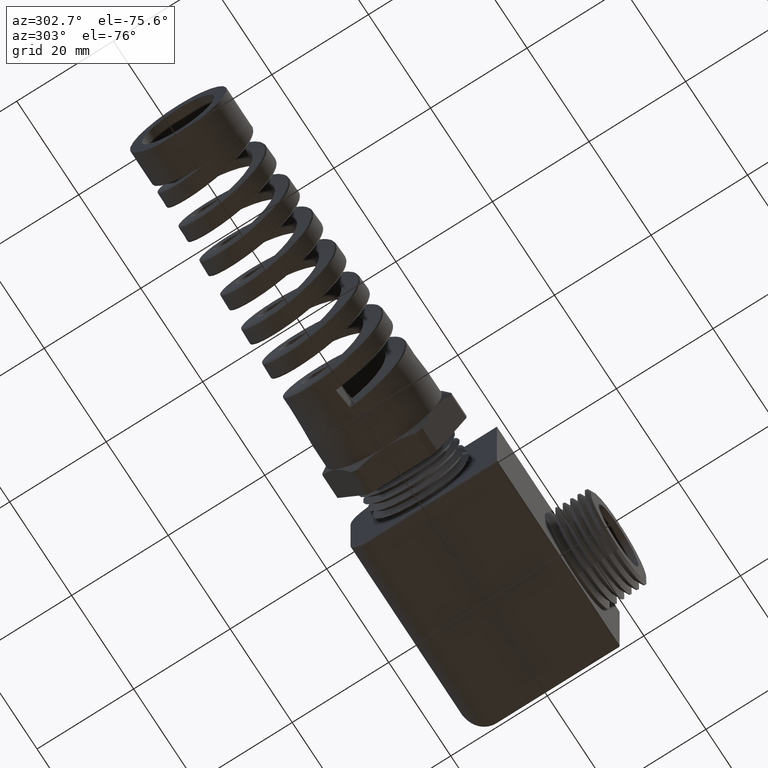
[diagram: clean part render]
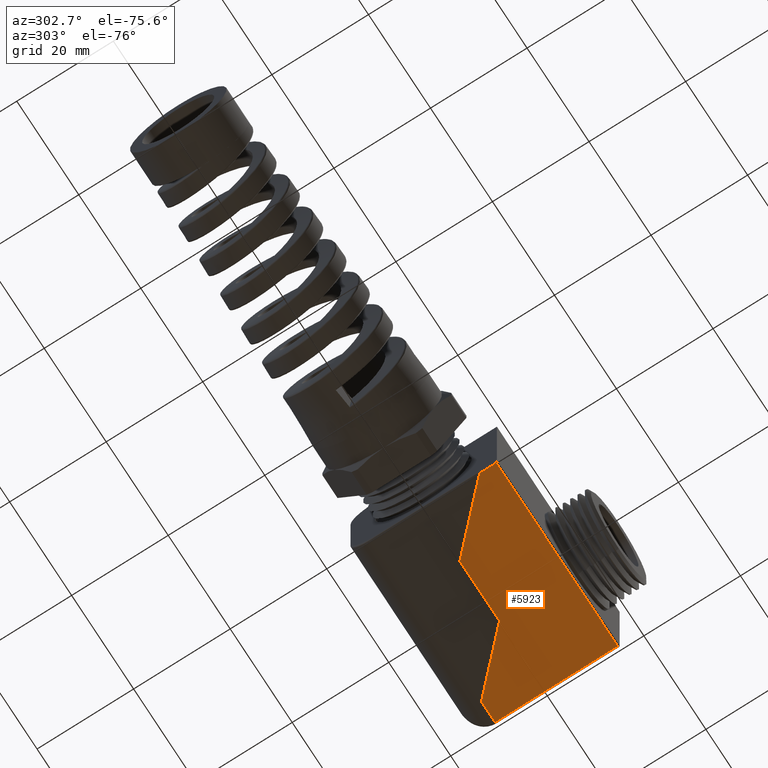
[diagram: same view with one face highlighted and labeled with its STEP entity id]
A machine part, auxiliary view. The second image highlights one B-rep face of the part: STEP entity #5923.
In plain terms, the highlighted planar face has unit normal (0, 0, 1).
Its self-contained STEP definition (entity closure, byte-faithful):
#3500 = CARTESIAN_POINT ( 'NONE',  ( 0.9679999999999955300, -6.137788176939980600E-018, -0.4699999999999999200 ) ) ;
#3527 = DIRECTION ( 'NONE',  ( -1.000000000000000000, -2.319516484482452500E-017, 0.0000000000000000000 ) ) ;
#3528 = VECTOR ( 'NONE', #3527, 39.37007874015748100 ) ;
#3529 = CARTESIAN_POINT ( 'NONE',  ( 1.232614984114216700, 0.0000000000000000000, -0.4699999999999999200 ) ) ;
#3530 = LINE ( 'NONE', #3529, #3528 ) ;
#3561 = DIRECTION ( 'NONE',  ( -0.7071067811865509000, -0.7071067811865441300, 0.0000000000000000000 ) ) ;
#3562 = VECTOR ( 'NONE', #3561, 39.37007874015748100 ) ;
#3573 = CARTESIAN_POINT ( 'NONE',  ( 0.9817780020556733400, 0.01377800205567775500, -0.4699999999999999200 ) ) ;
#3574 = LINE ( 'NONE', #3573, #3562 ) ;
#3596 = CARTESIAN_POINT ( 'NONE',  ( 0.01265536723163843500, -0.4513446327683522400, -0.4699999999999999200 ) ) ;
#3597 = DIRECTION ( 'NONE',  ( -0.7071067811865512400, -0.7071067811865438000, 0.0000000000000000000 ) ) ;
#3598 = VECTOR ( 'NONE', #3597, 39.37007874015748100 ) ;
#3600 = CARTESIAN_POINT ( 'NONE',  ( 0.7297780020556762200, 0.2657780020556779200, -0.4699999999999999200 ) ) ;
#3601 = LINE ( 'NONE', #3600, #3598 ) ;
#3602 = CARTESIAN_POINT ( 'NONE',  ( 0.4639999999999955300, 0.0000000000000000000, -0.4699999999999999200 ) ) ;
#3618 = LINE ( 'NONE', #3673, #3672 ) ;
#3619 = CARTESIAN_POINT ( 'NONE',  ( 1.381333333333332900, 0.4133333333333332200, -0.4699999999999999200 ) ) ;
#3641 = CARTESIAN_POINT ( 'NONE',  ( 0.01265536723163844200, -0.5873446327683619100, -0.4699999999999999200 ) ) ;
#3670 = DIRECTION ( 'NONE',  ( -6.418815774587142800E-017, 1.000000000000000000, 0.0000000000000000000 ) ) ;
#3672 = VECTOR ( 'NONE', #3670, 39.37007874015748100 ) ;
#3673 = CARTESIAN_POINT ( 'NONE',  ( 0.01265536723163842100, -0.2370589800028679000, -0.4699999999999999200 ) ) ;
#3707 = CARTESIAN_POINT ( 'NONE',  ( 1.555344632768362000, -0.5873446327683616900, -0.4699999999999999200 ) ) ;
#3715 = DIRECTION ( 'NONE',  ( 1.000000000000000000, 0.0000000000000000000, 0.0000000000000000000 ) ) ;
#3716 = DIRECTION ( 'NONE',  ( 0.0000000000000000000, 0.0000000000000000000, 1.000000000000000000 ) ) ;
#3717 = CARTESIAN_POINT ( 'NONE',  ( 1.232614984114216700, -0.2370589800028678500, -0.4699999999999999200 ) ) ;
#3718 = AXIS2_PLACEMENT_3D ( 'NONE', #3717, #3716, #3715 ) ;
#3719 = PLANE ( 'NONE',  #3718 ) ;
#3721 = FACE_OUTER_BOUND ( 'NONE', #5925, .T. ) ;
#3722 = DIRECTION ( 'NONE',  ( -1.000000000000000000, -1.306687496969513600E-016, 0.0000000000000000000 ) ) ;
#3723 = VECTOR ( 'NONE', #3722, 39.37007874015748100 ) ;
#3725 = CARTESIAN_POINT ( 'NONE',  ( 0.0000000000000000000, -0.5873446327683619100, -0.4699999999999999200 ) ) ;
#3726 = LINE ( 'NONE', #3725, #3723 ) ;
#3888 = DIRECTION ( 'NONE',  ( 2.276539994720219800E-016, -1.000000000000000000, 0.0000000000000000000 ) ) ;
#3890 = VECTOR ( 'NONE', #3888, 39.37007874015748100 ) ;
#3891 = CARTESIAN_POINT ( 'NONE',  ( 1.555344632768362000, -0.5999999999999999800, -0.4699999999999999200 ) ) ;
#3892 = LINE ( 'NONE', #3891, #3890 ) ;
#3902 = CARTESIAN_POINT ( 'NONE',  ( 1.555344632768361800, 0.4133333333333332200, -0.4699999999999999200 ) ) ;
#3903 = DIRECTION ( 'NONE',  ( 1.000000000000000000, 0.0000000000000000000, 0.0000000000000000000 ) ) ;
#3904 = VECTOR ( 'NONE', #3903, 39.37007874015748100 ) ;
#3905 = CARTESIAN_POINT ( 'NONE',  ( 1.232614984114216700, 0.4133333333333332200, -0.4699999999999999200 ) ) ;
#3906 = LINE ( 'NONE', #3905, #3904 ) ;
#5701 = ORIENTED_EDGE ( 'NONE', *, *, #5884, .F. ) ;
#5795 = ORIENTED_EDGE ( 'NONE', *, *, #5861, .F. ) ;
#5837 = VERTEX_POINT ( 'NONE', #3500 ) ;
#5861 = EDGE_CURVE ( 'NONE', #5837, #5882, #3530, .T. ) ;
#5873 = EDGE_CURVE ( 'NONE', #5899, #5837, #3574, .T. ) ;
#5882 = VERTEX_POINT ( 'NONE', #3602 ) ;
#5884 = EDGE_CURVE ( 'NONE', #5882, #5885, #3601, .T. ) ;
#5885 = VERTEX_POINT ( 'NONE', #3596 ) ;
#5899 = VERTEX_POINT ( 'NONE', #3619 ) ;
#5904 = ORIENTED_EDGE ( 'NONE', *, *, #5918, .T. ) ;
#5905 = ORIENTED_EDGE ( 'NONE', *, *, #5906, .T. ) ;
#5906 = EDGE_CURVE ( 'NONE', #5916, #5885, #3618, .T. ) ;
#5916 = VERTEX_POINT ( 'NONE', #3641 ) ;
#5918 = EDGE_CURVE ( 'NONE', #5927, #5916, #3726, .T. ) ;
#5923 = ADVANCED_FACE ( 'NONE', ( #3721 ), #3719, .F. ) ;
#5925 = EDGE_LOOP ( 'NONE', ( #6018, #6019, #6026, #5904, #5905, #5701, #5795 ) ) ;
#5927 = VERTEX_POINT ( 'NONE', #3707 ) ;
#6018 = ORIENTED_EDGE ( 'NONE', *, *, #5873, .F. ) ;
#6019 = ORIENTED_EDGE ( 'NONE', *, *, #6020, .T. ) ;
#6020 = EDGE_CURVE ( 'NONE', #5899, #6021, #3906, .T. ) ;
#6021 = VERTEX_POINT ( 'NONE', #3902 ) ;
#6026 = ORIENTED_EDGE ( 'NONE', *, *, #6027, .T. ) ;
#6027 = EDGE_CURVE ( 'NONE', #6021, #5927, #3892, .T. ) ;